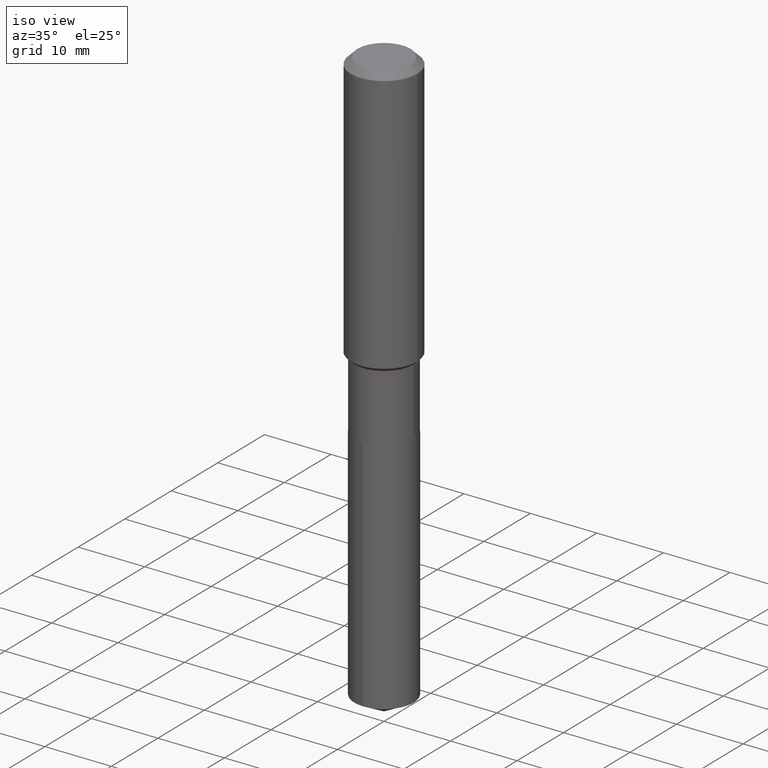
[diagram: clean part render]
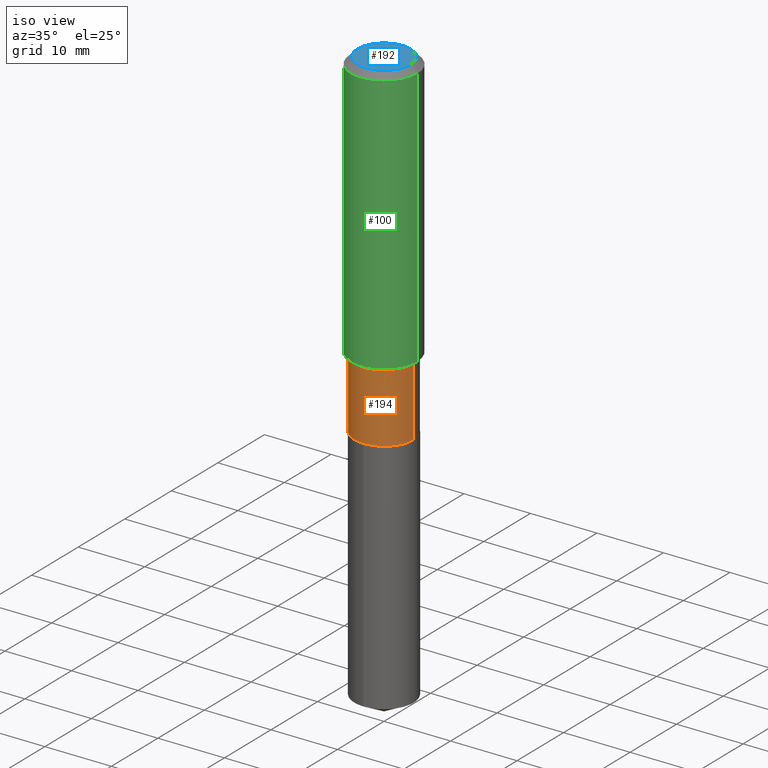
[diagram: same view with three faces highlighted in distinct colors, each labeled with its STEP entity id]
A machine part, iso view with three faces highlighted in distinct colors.
Their STEP definitions:

[orange] entity #194 — the highlighted cylindrical surface (edge-blend (fillet) strip) has radius 4.4501 mm, axis along (-0, 0, 1).
#10 = CARTESIAN_POINT ( 'NONE',  ( 4.899252206311301777E-29, -6.994833714238356601E-15, -2.003399999999999626 ) ) ;
#16 = DIRECTION ( 'NONE',  ( -2.445468806185136877E-29, 3.491481338843145188E-15, 1.000000000000000000 ) ) ;
#36 = CYLINDRICAL_SURFACE ( 'NONE', #346, 0.1751999999999999946 ) ;
#52 = ORIENTED_EDGE ( 'NONE', *, *, #444, .F. ) ;
#59 = CARTESIAN_POINT ( 'NONE',  ( 0.1751999999999999391, -6.812927536484624885E-15, -1.600899999999999768 ) ) ;
#70 = LINE ( 'NONE', #220, #353 ) ;
#89 = DIRECTION ( 'NONE',  ( -2.445468806185136597E-29, 3.491481338843145583E-15, 1.000000000000000000 ) ) ;
#94 = CARTESIAN_POINT ( 'NONE',  ( 0.1752000000000000224, -8.218248775368990478E-15, -2.003399999999999626 ) ) ;
#120 = DIRECTION ( 'NONE',  ( 1.000000000000000000, -6.982962677686265133E-15, 4.876176775795935793E-29 ) ) ;
#124 = CIRCLE ( 'NONE', #378, 0.1751999999999999391 ) ;
#133 = CARTESIAN_POINT ( 'NONE',  ( -0.1752000000000000224, -5.047302221744479303E-15, -2.003399999999999626 ) ) ;
#158 = EDGE_CURVE ( 'NONE', #361, #228, #359, .T. ) ;
#159 = DIRECTION ( 'NONE',  ( 1.000000000000000000, -6.982962677686267499E-15, 0.000000000000000000 ) ) ;
#164 = CARTESIAN_POINT ( 'NONE',  ( 0.1751999999999999946, -1.223415061130633680E-15, 8.543061711194479319E-30 ) ) ;
#194 = ADVANCED_FACE ( 'NONE', ( #388 ), #36, .T. ) ;
#195 = CARTESIAN_POINT ( 'NONE',  ( 0.000000000000000000, 0.000000000000000000, 0.000000000000000000 ) ) ;
#200 = DIRECTION ( 'NONE',  ( 1.000000000000000000, -6.982962677686265133E-15, 0.000000000000000000 ) ) ;
#216 = CIRCLE ( 'NONE', #273, 0.1752000000000000224 ) ;
#220 = CARTESIAN_POINT ( 'NONE',  ( -0.1751999999999999946, 1.244870873051695487E-15, -8.617974278126594374E-30 ) ) ;
#228 = VERTEX_POINT ( 'NONE', #59 ) ;
#244 = VERTEX_POINT ( 'NONE', #298 ) ;
#251 = DIRECTION ( 'NONE',  ( -2.445468806185136597E-29, 3.491481338843145583E-15, 1.000000000000000000 ) ) ;
#273 = AXIS2_PLACEMENT_3D ( 'NONE', #10, #251, #159 ) ;
#281 = ORIENTED_EDGE ( 'NONE', *, *, #158, .T. ) ;
#286 = CARTESIAN_POINT ( 'NONE',  ( 3.914951011821784364E-29, -5.589512475353991008E-15, -1.600899999999999768 ) ) ;
#298 = CARTESIAN_POINT ( 'NONE',  ( -0.1751999999999999391, -5.047302221744479303E-15, -1.600899999999999768 ) ) ;
#320 = ORIENTED_EDGE ( 'NONE', *, *, #354, .F. ) ;
#326 = VERTEX_POINT ( 'NONE', #133 ) ;
#333 = ORIENTED_EDGE ( 'NONE', *, *, #374, .T. ) ;
#338 = DIRECTION ( 'NONE',  ( -2.445468806185136877E-29, 3.491481338843145188E-15, 1.000000000000000000 ) ) ;
#346 = AXIS2_PLACEMENT_3D ( 'NONE', #195, #462, #120 ) ;
#353 = VECTOR ( 'NONE', #338, 39.37007874015748143 ) ;
#354 = EDGE_CURVE ( 'NONE', #244, #228, #124, .T. ) ;
#359 = LINE ( 'NONE', #164, #488 ) ;
#361 = VERTEX_POINT ( 'NONE', #94 ) ;
#374 = EDGE_CURVE ( 'NONE', #326, #361, #216, .T. ) ;
#378 = AXIS2_PLACEMENT_3D ( 'NONE', #286, #89, #200 ) ;
#388 = FACE_OUTER_BOUND ( 'NONE', #427, .T. ) ;
#427 = EDGE_LOOP ( 'NONE', ( #52, #333, #281, #320 ) ) ;
#444 = EDGE_CURVE ( 'NONE', #326, #244, #70, .T. ) ;
#462 = DIRECTION ( 'NONE',  ( -2.445468806185136597E-29, 3.491481338843145583E-15, 1.000000000000000000 ) ) ;
#488 = VECTOR ( 'NONE', #16, 39.37007874015748143 ) ;

[blue] entity #192 — the highlighted planar face has unit normal (0, -0, -1).
#35 = FACE_OUTER_BOUND ( 'NONE', #86, .T. ) ;
#39 = AXIS2_PLACEMENT_3D ( 'NONE', #365, #261, #340 ) ;
#53 = DIRECTION ( 'NONE',  ( 1.000000000000000000, -6.982962677686265922E-15, 4.876223630392693006E-29 ) ) ;
#81 = EDGE_CURVE ( 'NONE', #253, #379, #135, .T. ) ;
#82 = DIRECTION ( 'NONE',  ( -1.000000000000000000, 6.982962677686265922E-15, -4.876176775795935793E-29 ) ) ;
#86 = EDGE_LOOP ( 'NONE', ( #201, #106 ) ) ;
#98 = CARTESIAN_POINT ( 'NONE',  ( -0.1574800000000000089, 1.168406772637159618E-15, 3.855188123707939751E-18 ) ) ;
#106 = ORIENTED_EDGE ( 'NONE', *, *, #217, .T. ) ;
#114 = DIRECTION ( 'NONE',  ( -2.445468806185136597E-29, 3.491481338843145583E-15, 1.000000000000000000 ) ) ;
#135 = CIRCLE ( 'NONE', #421, 0.1574800000000000089 ) ;
#156 = PLANE ( 'NONE',  #282 ) ;
#192 = ADVANCED_FACE ( 'NONE', ( #35 ), #156, .F. ) ;
#201 = ORIENTED_EDGE ( 'NONE', *, *, #81, .T. ) ;
#217 = EDGE_CURVE ( 'NONE', #379, #253, #238, .T. ) ;
#238 = CIRCLE ( 'NONE', #39, 0.1574800000000000089 ) ;
#253 = VERTEX_POINT ( 'NONE', #98 ) ;
#261 = DIRECTION ( 'NONE',  ( -2.445468806185136597E-29, 3.491481338843145583E-15, 1.000000000000000000 ) ) ;
#277 = CARTESIAN_POINT ( 'NONE',  ( -4.713871149261283817E-47, 6.730158695841841775E-33, 1.927594061857935365E-18 ) ) ;
#279 = CARTESIAN_POINT ( 'NONE',  ( -9.427742298522567634E-47, 1.346031739168368355E-32, 3.855188123715870730E-18 ) ) ;
#282 = AXIS2_PLACEMENT_3D ( 'NONE', #277, #428, #82 ) ;
#340 = DIRECTION ( 'NONE',  ( 1.000000000000000000, -6.982962677686265922E-15, 4.876223630392693006E-29 ) ) ;
#365 = CARTESIAN_POINT ( 'NONE',  ( -9.427742298522567634E-47, 1.346031739168368355E-32, 3.855188123715870730E-18 ) ) ;
#379 = VERTEX_POINT ( 'NONE', #408 ) ;
#408 = CARTESIAN_POINT ( 'NONE',  ( 0.1574800000000000089, -1.284169937930321189E-15, 3.855188123724205385E-18 ) ) ;
#421 = AXIS2_PLACEMENT_3D ( 'NONE', #279, #114, #53 ) ;
#428 = DIRECTION ( 'NONE',  ( 2.438088387897960049E-29, -3.491481338843145188E-15, -1.000000000000000000 ) ) ;

[green] entity #100 — the highlighted cylindrical surface (partial cylindrical patch) has radius 5 mm, axis along (-0, 0, 1).
#1 = AXIS2_PLACEMENT_3D ( 'NONE', #430, #395, #51 ) ;
#20 = FACE_OUTER_BOUND ( 'NONE', #138, .T. ) ;
#22 = VERTEX_POINT ( 'NONE', #301 ) ;
#51 = DIRECTION ( 'NONE',  ( 1.000000000000000000, -6.982962677686265922E-15, 0.000000000000000000 ) ) ;
#84 = DIRECTION ( 'NONE',  ( 1.000000000000000000, -6.982962677686265922E-15, 0.000000000000000000 ) ) ;
#90 = ORIENTED_EDGE ( 'NONE', *, *, #349, .F. ) ;
#99 = CARTESIAN_POINT ( 'NONE',  ( 0.1968500000000000250, -1.512055823412797189E-15, -0.03937000000000029365 ) ) ;
#100 = ADVANCED_FACE ( 'NONE', ( #20 ), #401, .T. ) ;
#127 = ORIENTED_EDGE ( 'NONE', *, *, #387, .F. ) ;
#129 = CARTESIAN_POINT ( 'NONE',  ( 3.862006612167875814E-29, -5.513921904368036353E-15, -1.579249999999999599 ) ) ;
#138 = EDGE_LOOP ( 'NONE', ( #90, #474, #206, #127 ) ) ;
#147 = VECTOR ( 'NONE', #389, 39.37007874015748143 ) ;
#162 = VERTEX_POINT ( 'NONE', #168 ) ;
#168 = CARTESIAN_POINT ( 'NONE',  ( -0.1968500000000000250, -1.426987386995387785E-15, -0.03937000000000029365 ) ) ;
#197 = CIRCLE ( 'NONE', #1, 0.1968500000000000250 ) ;
#199 = CARTESIAN_POINT ( 'NONE',  ( 0.1968500000000001082, -1.374596203102542397E-15, 9.598753983154305062E-30 ) ) ;
#202 = EDGE_CURVE ( 'NONE', #22, #296, #280, .T. ) ;
#206 = ORIENTED_EDGE ( 'NONE', *, *, #202, .T. ) ;
#212 = LINE ( 'NONE', #234, #147 ) ;
#226 = AXIS2_PLACEMENT_3D ( 'NONE', #129, #442, #84 ) ;
#234 = CARTESIAN_POINT ( 'NONE',  ( -0.1968500000000001082, 1.398703375343757985E-15, -9.682923725166787881E-30 ) ) ;
#248 = DIRECTION ( 'NONE',  ( -2.445468806185136597E-29, 3.491481338843145583E-15, 1.000000000000000000 ) ) ;
#259 = CARTESIAN_POINT ( 'NONE',  ( 0.000000000000000000, 0.000000000000000000, 0.000000000000000000 ) ) ;
#280 = LINE ( 'NONE', #199, #308 ) ;
#296 = VERTEX_POINT ( 'NONE', #99 ) ;
#301 = CARTESIAN_POINT ( 'NONE',  ( 0.1968500000000002192, -6.888518107470578750E-15, -1.579249999999999599 ) ) ;
#308 = VECTOR ( 'NONE', #429, 39.37007874015748143 ) ;
#349 = EDGE_CURVE ( 'NONE', #350, #162, #212, .T. ) ;
#350 = VERTEX_POINT ( 'NONE', #366 ) ;
#357 = EDGE_CURVE ( 'NONE', #350, #22, #423, .T. ) ;
#366 = CARTESIAN_POINT ( 'NONE',  ( -0.1968500000000002192, -4.115218529024277777E-15, -1.579249999999999599 ) ) ;
#387 = EDGE_CURVE ( 'NONE', #162, #296, #197, .T. ) ;
#389 = DIRECTION ( 'NONE',  ( -2.445468806185136877E-29, 3.491481338843145188E-15, 1.000000000000000000 ) ) ;
#391 = AXIS2_PLACEMENT_3D ( 'NONE', #259, #248, #480 ) ;
#395 = DIRECTION ( 'NONE',  ( -2.445468806185136597E-29, 3.491481338843145583E-15, 1.000000000000000000 ) ) ;
#401 = CYLINDRICAL_SURFACE ( 'NONE', #391, 0.1968500000000001082 ) ;
#423 = CIRCLE ( 'NONE', #226, 0.1968500000000002192 ) ;
#429 = DIRECTION ( 'NONE',  ( -2.445468806185136877E-29, 3.491481338843145188E-15, 1.000000000000000000 ) ) ;
#430 = CARTESIAN_POINT ( 'NONE',  ( 9.627810689950954155E-31, -1.374596203102556547E-16, -0.03937000000000029365 ) ) ;
#442 = DIRECTION ( 'NONE',  ( -2.445468806185136597E-29, 3.491481338843145583E-15, 1.000000000000000000 ) ) ;
#474 = ORIENTED_EDGE ( 'NONE', *, *, #357, .T. ) ;
#480 = DIRECTION ( 'NONE',  ( 1.000000000000000000, -6.982962677686266711E-15, 4.876176775795935793E-29 ) ) ;